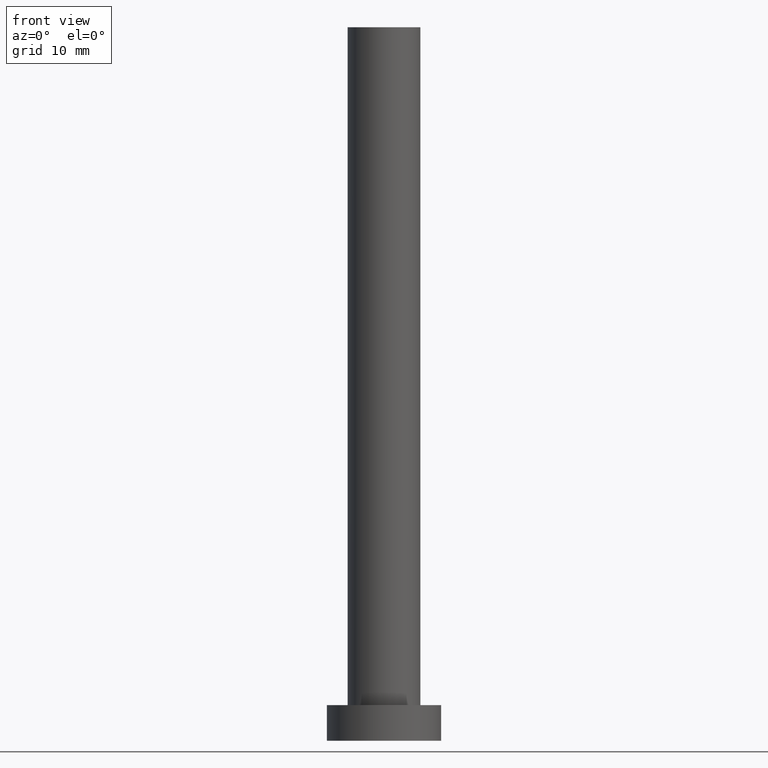
[diagram: clean part render]
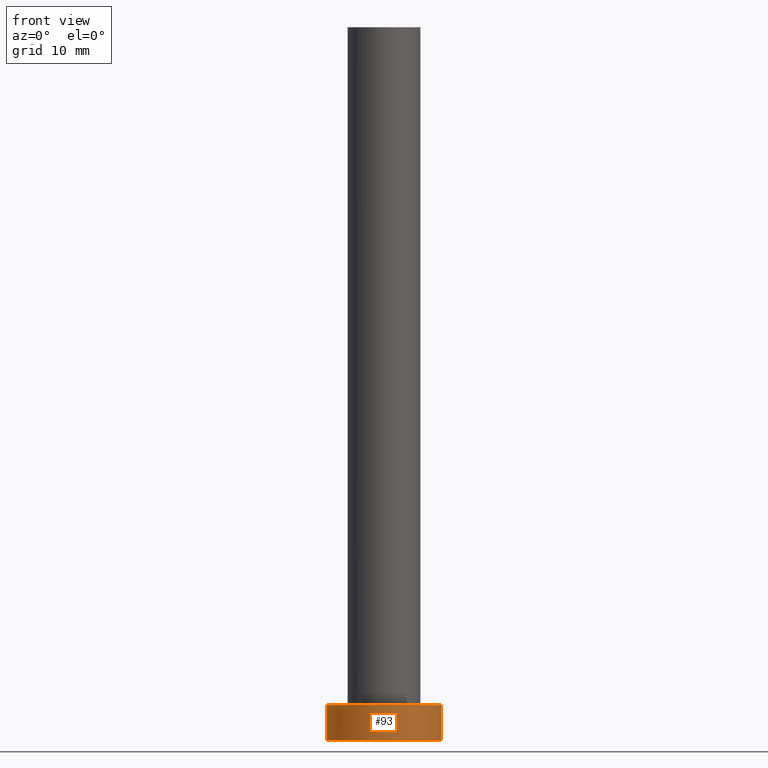
[diagram: same view with one face highlighted and labeled with its STEP entity id]
A machine part, front view. The second image highlights one B-rep face of the part: STEP entity #93.
In plain terms, the highlighted cylindrical surface (partial cylindrical patch) has radius 8 mm, axis along (-0, -0, -1).
Its self-contained STEP definition (entity closure, byte-faithful):
#13 = DIRECTION ( 'NONE',  ( -0.000000000000000000, -0.000000000000000000, -1.000000000000000000 ) ) ;
#15 = EDGE_LOOP ( 'NONE', ( #239, #169, #47, #91 ) ) ;
#22 = DIRECTION ( 'NONE',  ( 0.000000000000000000, 0.000000000000000000, 1.000000000000000000 ) ) ;
#38 = EDGE_CURVE ( 'NONE', #124, #114, #48, .T. ) ;
#44 = VERTEX_POINT ( 'NONE', #100 ) ;
#47 = ORIENTED_EDGE ( 'NONE', *, *, #38, .T. ) ;
#48 = LINE ( 'NONE', #196, #151 ) ;
#82 = AXIS2_PLACEMENT_3D ( 'NONE', #172, #255, #186 ) ;
#90 = EDGE_CURVE ( 'NONE', #44, #125, #165, .T. ) ;
#91 = ORIENTED_EDGE ( 'NONE', *, *, #204, .T. ) ;
#93 = ADVANCED_FACE ( 'NONE', ( #143 ), #164, .T. ) ;
#100 = CARTESIAN_POINT ( 'NONE',  ( 8.000000000000000000, 9.797174393178825657E-16, 5.000000000000000000 ) ) ;
#101 = CIRCLE ( 'NONE', #126, 8.000000000000000000 ) ;
#110 = DIRECTION ( 'NONE',  ( -1.000000000000000000, 0.000000000000000000, 0.000000000000000000 ) ) ;
#114 = VERTEX_POINT ( 'NONE', #253 ) ;
#120 = CARTESIAN_POINT ( 'NONE',  ( 8.000000000000000000, 9.797174393178825657E-16, 0.000000000000000000 ) ) ;
#124 = VERTEX_POINT ( 'NONE', #211 ) ;
#125 = VERTEX_POINT ( 'NONE', #120 ) ;
#126 = AXIS2_PLACEMENT_3D ( 'NONE', #154, #22, #149 ) ;
#127 = VECTOR ( 'NONE', #130, 1000.000000000000000 ) ;
#130 = DIRECTION ( 'NONE',  ( -0.000000000000000000, -0.000000000000000000, -1.000000000000000000 ) ) ;
#143 = FACE_OUTER_BOUND ( 'NONE', #15, .T. ) ;
#149 = DIRECTION ( 'NONE',  ( 1.000000000000000000, 0.000000000000000000, 0.000000000000000000 ) ) ;
#151 = VECTOR ( 'NONE', #201, 1000.000000000000000 ) ;
#154 = CARTESIAN_POINT ( 'NONE',  ( 0.000000000000000000, 0.000000000000000000, 5.000000000000000000 ) ) ;
#164 = CYLINDRICAL_SURFACE ( 'NONE', #240, 8.000000000000000000 ) ;
#165 = LINE ( 'NONE', #206, #127 ) ;
#169 = ORIENTED_EDGE ( 'NONE', *, *, #245, .F. ) ;
#172 = CARTESIAN_POINT ( 'NONE',  ( 0.000000000000000000, 0.000000000000000000, 0.000000000000000000 ) ) ;
#186 = DIRECTION ( 'NONE',  ( 1.000000000000000000, 0.000000000000000000, 0.000000000000000000 ) ) ;
#196 = CARTESIAN_POINT ( 'NONE',  ( -8.000000000000000000, 0.000000000000000000, 5.000000000000000000 ) ) ;
#201 = DIRECTION ( 'NONE',  ( -0.000000000000000000, -0.000000000000000000, -1.000000000000000000 ) ) ;
#204 = EDGE_CURVE ( 'NONE', #114, #125, #247, .T. ) ;
#206 = CARTESIAN_POINT ( 'NONE',  ( 8.000000000000000000, 9.797174393178825657E-16, 5.000000000000000000 ) ) ;
#211 = CARTESIAN_POINT ( 'NONE',  ( -8.000000000000000000, 0.000000000000000000, 5.000000000000000000 ) ) ;
#226 = CARTESIAN_POINT ( 'NONE',  ( 0.000000000000000000, 0.000000000000000000, 5.000000000000000000 ) ) ;
#239 = ORIENTED_EDGE ( 'NONE', *, *, #90, .F. ) ;
#240 = AXIS2_PLACEMENT_3D ( 'NONE', #226, #13, #110 ) ;
#245 = EDGE_CURVE ( 'NONE', #124, #44, #101, .T. ) ;
#247 = CIRCLE ( 'NONE', #82, 8.000000000000000000 ) ;
#253 = CARTESIAN_POINT ( 'NONE',  ( -8.000000000000000000, 0.000000000000000000, 0.000000000000000000 ) ) ;
#255 = DIRECTION ( 'NONE',  ( 0.000000000000000000, 0.000000000000000000, 1.000000000000000000 ) ) ;